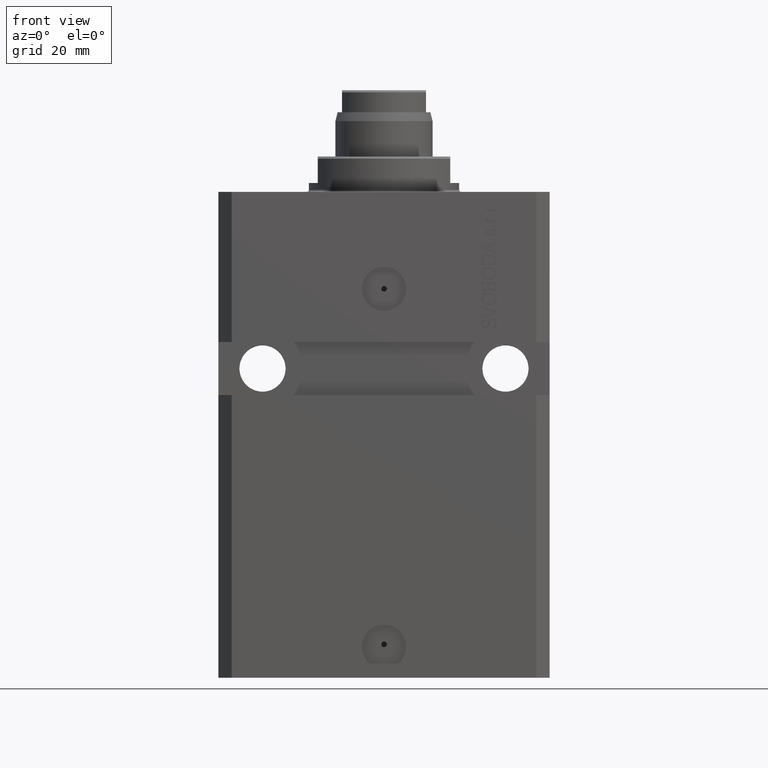
[diagram: clean part render]
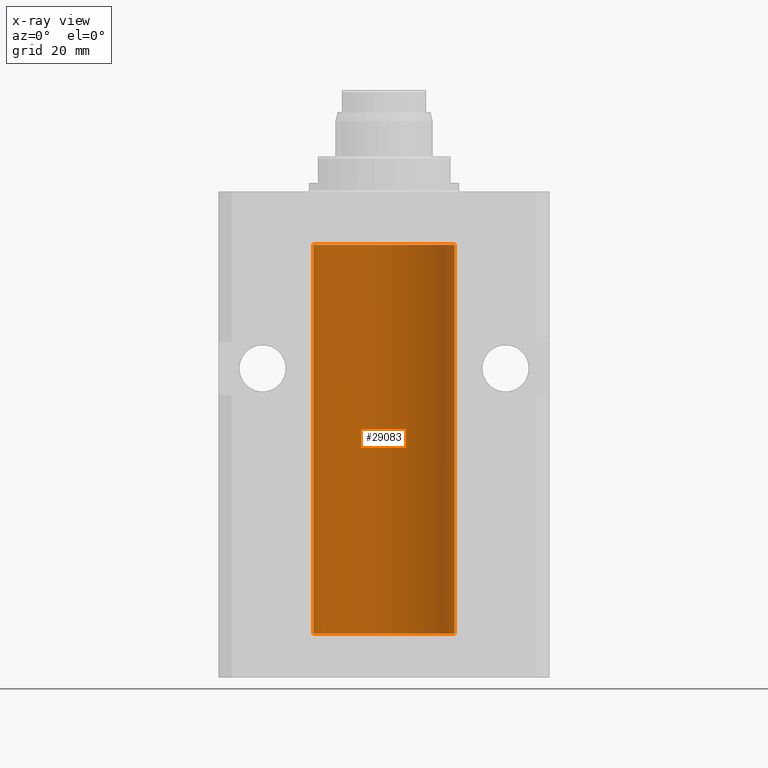
[diagram: x-ray — body ghosted, one internal face saturated and labeled with its STEP entity id]
A machine part, front view, then the same camera in x-ray: the body is ghosted and one INTERNAL B-rep face — a face not visible from any outside direction — is saturated and labeled: STEP entity #29083.
In plain terms, the highlighted cylindrical surface (partial cylindrical patch) has radius 16 mm, axis along (0, 0, 1).
Its self-contained STEP definition (entity closure, byte-faithful):
#52 = DIRECTION ( 'NONE',  ( 0.000000000000000000, 0.000000000000000000, 1.000000000000000000 ) ) ;
#264 = CARTESIAN_POINT ( 'NONE',  ( 15.99070366873610993, 0.5574063959866684126, -22.32639436837550306 ) ) ;
#297 = EDGE_LOOP ( 'NONE', ( #33953, #41351, #25873, #44424, #28493, #27904, #3348, #14983, #32711, #19507 ) ) ;
#338 = CARTESIAN_POINT ( 'NONE',  ( 15.98778830858070954, 0.6250000000080517815, -97.99999999999916156 ) ) ;
#2099 = CARTESIAN_POINT ( 'NONE',  ( 0.000000000000000000, 0.000000000000000000, -12.00000000000000000 ) ) ;
#2587 = VERTEX_POINT ( 'NONE', #9509 ) ;
#2707 = CARTESIAN_POINT ( 'NONE',  ( 15.98844460043491367, 0.6087869699337551399, -97.83657454967556077 ) ) ;
#3099 = VECTOR ( 'NONE', #21445, 1000.000000000000000 ) ;
#3221 = CARTESIAN_POINT ( 'NONE',  ( 16.00000000000000000, 0.000000000000000000, -99.99999999999998579 ) ) ;
#3348 = ORIENTED_EDGE ( 'NONE', *, *, #24073, .T. ) ;
#3639 = EDGE_CURVE ( 'NONE', #15036, #35920, #38036, .T. ) ;
#5138 = DIRECTION ( 'NONE',  ( -0.000000000000000000, -0.000000000000000000, 1.000000000000000000 ) ) ;
#6021 = CARTESIAN_POINT ( 'NONE',  ( 15.99070695999103542, 0.5461439696927204990, -97.68526802364048933 ) ) ;
#6868 = EDGE_CURVE ( 'NONE', #28734, #34662, #38655, .T. ) ;
#7122 = CARTESIAN_POINT ( 'NONE',  ( 15.99934183755191341, 0.1636877470526797440, -22.60872690654067796 ) ) ;
#8007 = EDGE_CURVE ( 'NONE', #19483, #25515, #27885, .T. ) ;
#8168 = CIRCLE ( 'NONE', #11905, 16.00000000000000000 ) ;
#8684 = CARTESIAN_POINT ( 'NONE',  ( 16.00000000000000000, 0.000000000000000000, -99.99999999999998579 ) ) ;
#9325 = CARTESIAN_POINT ( 'NONE',  ( 15.99228275317786441, 0.5002975944204781644, -97.61642014570176684 ) ) ;
#9509 = CARTESIAN_POINT ( 'NONE',  ( 16.00000000000013145, 3.665532692826917502E-13, -97.37499999999657518 ) ) ;
#11905 = AXIS2_PLACEMENT_3D ( 'NONE', #2099, #38306, #13690 ) ;
#12191 = CARTESIAN_POINT ( 'NONE',  ( -16.00000000000000000, 1.959434878635765131E-15, -99.99999999999998579 ) ) ;
#12329 = AXIS2_PLACEMENT_3D ( 'NONE', #25125, #36241, #28676 ) ;
#12413 = CARTESIAN_POINT ( 'NONE',  ( 15.99934183755190986, 0.1636877470527013101, -98.60872690654072414 ) ) ;
#12693 = CARTESIAN_POINT ( 'NONE',  ( 16.00000000000000000, 0.000000000000000000, -12.00000000000000000 ) ) ;
#13338 = CARTESIAN_POINT ( 'NONE',  ( 15.98778830858101685, 0.6250000000002223777, -98.16311639173024162 ) ) ;
#13690 = DIRECTION ( 'NONE',  ( 1.000000000000000000, 0.000000000000000000, 0.000000000000000000 ) ) ;
#14688 = CARTESIAN_POINT ( 'NONE',  ( 15.98778830858070954, 0.6250000000079481977, -21.99999999999914735 ) ) ;
#14896 = CARTESIAN_POINT ( 'NONE',  ( 15.98778830858103817, 0.6249999999996181943, -21.91847885046212951 ) ) ;
#14983 = ORIENTED_EDGE ( 'NONE', *, *, #6868, .T. ) ;
#15036 = VERTEX_POINT ( 'NONE', #25801 ) ;
#15786 = EDGE_CURVE ( 'NONE', #25515, #2587, #21054, .T. ) ;
#15965 = CARTESIAN_POINT ( 'NONE',  ( 16.00000000000000000, -1.835653844722709729E-15, -98.62500000000000000 ) ) ;
#16304 = CARTESIAN_POINT ( 'NONE',  ( 15.99711856062700122, 0.3252985083513914577, -21.44140297987715016 ) ) ;
#17553 = CARTESIAN_POINT ( 'NONE',  ( 15.99999999999999645, 0.08261762387942306329, -22.62499999999997868 ) ) ;
#17568 = FACE_OUTER_BOUND ( 'NONE', #297, .T. ) ;
#18027 = CARTESIAN_POINT ( 'NONE',  ( 0.000000000000000000, 0.000000000000000000, -99.99999999999998579 ) ) ;
#18474 = CARTESIAN_POINT ( 'NONE',  ( 16.00000000000000000, 2.111103446002389479E-15, -22.62500000000000000 ) ) ;
#18685 = CARTESIAN_POINT ( 'NONE',  ( 15.99228275317787151, 0.5002975944204001157, -21.61642014570180947 ) ) ;
#19483 = VERTEX_POINT ( 'NONE', #26085 ) ;
#19507 = ORIENTED_EDGE ( 'NONE', *, *, #37654, .T. ) ;
#19587 = CARTESIAN_POINT ( 'NONE',  ( 15.98778830858070954, 0.6250000000079481977, -21.99999999999914735 ) ) ;
#19847 = CARTESIAN_POINT ( 'NONE',  ( 16.00000000000013145, 3.665532680419208314E-13, -21.37499999999658229 ) ) ;
#20203 = CARTESIAN_POINT ( 'NONE',  ( 16.00000000000013145, 3.665532692826917502E-13, -97.37499999999657518 ) ) ;
#20350 = EDGE_CURVE ( 'NONE', #35920, #42168, #28547, .T. ) ;
#21054 = B_SPLINE_CURVE_WITH_KNOTS ( 'NONE', 3,
 ( #34890, #23767, #2707, #6021, #9325, #31568, #27552, #20203 ),
 .UNSPECIFIED., .F., .F.,
 ( 4, 2, 2, 4 ),
 ( 0.0009773326288700682433, 0.001221554802188685399, 0.001465776975507302772, 0.001954221322144537518 ),
 .UNSPECIFIED. ) ;
#21445 = DIRECTION ( 'NONE',  ( -0.000000000000000000, -0.000000000000000000, 1.000000000000000000 ) ) ;
#22016 = CARTESIAN_POINT ( 'NONE',  ( 15.98778830858101685, 0.6250000000001205702, -22.16311639173018833 ) ) ;
#22481 = EDGE_CURVE ( 'NONE', #34662, #38563, #35645, .T. ) ;
#23413 = DIRECTION ( 'NONE',  ( -0.000000000000000000, -0.000000000000000000, 1.000000000000000000 ) ) ;
#23767 = CARTESIAN_POINT ( 'NONE',  ( 15.98778830858103817, 0.6249999999997223332, -97.91847885046210820 ) ) ;
#24073 = EDGE_CURVE ( 'NONE', #43434, #28734, #25483, .T. ) ;
#25125 = CARTESIAN_POINT ( 'NONE',  ( 0.000000000000000000, 0.000000000000000000, -99.99999999999998579 ) ) ;
#25483 = B_SPLINE_CURVE_WITH_KNOTS ( 'NONE', 3,
 ( #18474, #17553, #7122, #43569, #36690, #264, #22016, #14688 ),
 .UNSPECIFIED., .F., .F.,
 ( 4, 2, 2, 4 ),
 ( 3.199434161265750614E-18, 0.0002443331572174949973, 0.0004886663144349868504, 0.0009773326288699782545 ),
 .UNSPECIFIED. ) ;
#25515 = VERTEX_POINT ( 'NONE', #338 ) ;
#25801 = CARTESIAN_POINT ( 'NONE',  ( 16.00000000000000000, 0.000000000000000000, -99.99999999999998579 ) ) ;
#25873 = ORIENTED_EDGE ( 'NONE', *, *, #38294, .T. ) ;
#25926 = CARTESIAN_POINT ( 'NONE',  ( -16.00000000000000000, 1.959434878635765131E-15, -12.00000000000000000 ) ) ;
#26085 = CARTESIAN_POINT ( 'NONE',  ( 16.00000000000000000, -1.835653844722709729E-15, -98.62500000000000000 ) ) ;
#27200 = CARTESIAN_POINT ( 'NONE',  ( 16.00000000000000000, 0.000000000000000000, -99.99999999999998579 ) ) ;
#27550 = CARTESIAN_POINT ( 'NONE',  ( 15.98778830858070954, 0.6250000000080517815, -97.99999999999916156 ) ) ;
#27552 = CARTESIAN_POINT ( 'NONE',  ( 15.99999999999999645, 0.1631343969470158417, -97.37500000000021316 ) ) ;
#27885 = B_SPLINE_CURVE_WITH_KNOTS ( 'NONE', 3,
 ( #15965, #34889, #12413, #41758, #38203, #30400, #13338, #27550 ),
 .UNSPECIFIED., .F., .F.,
 ( 4, 2, 2, 4 ),
 ( 1.783888443149829469E-18, 0.0002443331572175257886, 0.0004886663144350497342, 0.0009773326288700682433 ),
 .UNSPECIFIED. ) ;
#27904 = ORIENTED_EDGE ( 'NONE', *, *, #38515, .T. ) ;
#28493 = ORIENTED_EDGE ( 'NONE', *, *, #15786, .T. ) ;
#28547 = LINE ( 'NONE', #28784, #3099 ) ;
#28676 = DIRECTION ( 'NONE',  ( 1.000000000000000000, 0.000000000000000000, 0.000000000000000000 ) ) ;
#28734 = VERTEX_POINT ( 'NONE', #19587 ) ;
#28784 = CARTESIAN_POINT ( 'NONE',  ( -16.00000000000000000, 1.959434878635765131E-15, -99.99999999999998579 ) ) ;
#29083 = ADVANCED_FACE ( 'NONE', ( #17568 ), #32217, .F. ) ;
#29338 = CARTESIAN_POINT ( 'NONE',  ( 15.98844460043492077, 0.6087869699336542206, -21.83657454967558209 ) ) ;
#30400 = CARTESIAN_POINT ( 'NONE',  ( 15.99070366873610283, 0.5574063959867601170, -98.32639436837558833 ) ) ;
#30983 = LINE ( 'NONE', #27200, #37640 ) ;
#31375 = DIRECTION ( 'NONE',  ( -0.000000000000000000, -0.000000000000000000, 1.000000000000000000 ) ) ;
#31568 = CARTESIAN_POINT ( 'NONE',  ( 15.99711856062700477, 0.3252985083514284281, -97.44140297987712529 ) ) ;
#32217 = CYLINDRICAL_SURFACE ( 'NONE', #12329, 16.00000000000000000 ) ;
#32457 = DIRECTION ( 'NONE',  ( 1.000000000000000000, 0.000000000000000000, 0.000000000000000000 ) ) ;
#32711 = ORIENTED_EDGE ( 'NONE', *, *, #22481, .T. ) ;
#33953 = ORIENTED_EDGE ( 'NONE', *, *, #20350, .F. ) ;
#34662 = VERTEX_POINT ( 'NONE', #39294 ) ;
#34889 = CARTESIAN_POINT ( 'NONE',  ( 16.00000000000001066, 0.08261762387943044628, -98.62500000000001421 ) ) ;
#34890 = CARTESIAN_POINT ( 'NONE',  ( 15.98778830858070954, 0.6250000000080517815, -97.99999999999916156 ) ) ;
#35645 = LINE ( 'NONE', #3221, #41705 ) ;
#35920 = VERTEX_POINT ( 'NONE', #12191 ) ;
#36241 = DIRECTION ( 'NONE',  ( -0.000000000000000000, -0.000000000000000000, 1.000000000000000000 ) ) ;
#36441 = CARTESIAN_POINT ( 'NONE',  ( 15.98778830858070954, 0.6250000000079481977, -21.99999999999914735 ) ) ;
#36690 = CARTESIAN_POINT ( 'NONE',  ( 15.99548458234361803, 0.3844468804815586727, -22.49947786696350960 ) ) ;
#37640 = VECTOR ( 'NONE', #23413, 1000.000000000000000 ) ;
#37654 = EDGE_CURVE ( 'NONE', #38563, #42168, #8168, .T. ) ;
#37936 = CARTESIAN_POINT ( 'NONE',  ( 16.00000000000000000, 2.111103446002389479E-15, -22.62500000000000000 ) ) ;
#38036 = CIRCLE ( 'NONE', #41088, 16.00000000000000000 ) ;
#38203 = CARTESIAN_POINT ( 'NONE',  ( 15.99548458234361448, 0.3844468804816183471, -98.49947786696355934 ) ) ;
#38294 = EDGE_CURVE ( 'NONE', #15036, #19483, #30983, .T. ) ;
#38306 = DIRECTION ( 'NONE',  ( 0.000000000000000000, 0.000000000000000000, 1.000000000000000000 ) ) ;
#38515 = EDGE_CURVE ( 'NONE', #2587, #43434, #45133, .T. ) ;
#38563 = VERTEX_POINT ( 'NONE', #12693 ) ;
#38655 = B_SPLINE_CURVE_WITH_KNOTS ( 'NONE', 3,
 ( #36441, #14896, #29338, #43785, #18685, #16304, #44482, #19847 ),
 .UNSPECIFIED., .F., .F.,
 ( 4, 2, 2, 4 ),
 ( 0.0009773326288699782545, 0.001221554802188574377, 0.001465776975507170283, 0.001954221322144355372 ),
 .UNSPECIFIED. ) ;
#39294 = CARTESIAN_POINT ( 'NONE',  ( 16.00000000000013145, 3.665532680419208314E-13, -21.37499999999658229 ) ) ;
#41088 = AXIS2_PLACEMENT_3D ( 'NONE', #18027, #52, #32457 ) ;
#41351 = ORIENTED_EDGE ( 'NONE', *, *, #3639, .F. ) ;
#41705 = VECTOR ( 'NONE', #31375, 1000.000000000000000 ) ;
#41758 = CARTESIAN_POINT ( 'NONE',  ( 15.99707608081895138, 0.3151028052310259620, -98.54594170697734512 ) ) ;
#42168 = VERTEX_POINT ( 'NONE', #25926 ) ;
#42169 = VECTOR ( 'NONE', #5138, 1000.000000000000000 ) ;
#43434 = VERTEX_POINT ( 'NONE', #37936 ) ;
#43569 = CARTESIAN_POINT ( 'NONE',  ( 15.99707608081895138, 0.3151028052309821081, -22.54594170697727051 ) ) ;
#43785 = CARTESIAN_POINT ( 'NONE',  ( 15.99070695999104252, 0.5461439696926365661, -21.68526802364053196 ) ) ;
#44424 = ORIENTED_EDGE ( 'NONE', *, *, #8007, .T. ) ;
#44482 = CARTESIAN_POINT ( 'NONE',  ( 15.99999999999998934, 0.1631343969470015198, -21.37500000000020961 ) ) ;
#45133 = LINE ( 'NONE', #8684, #42169 ) ;